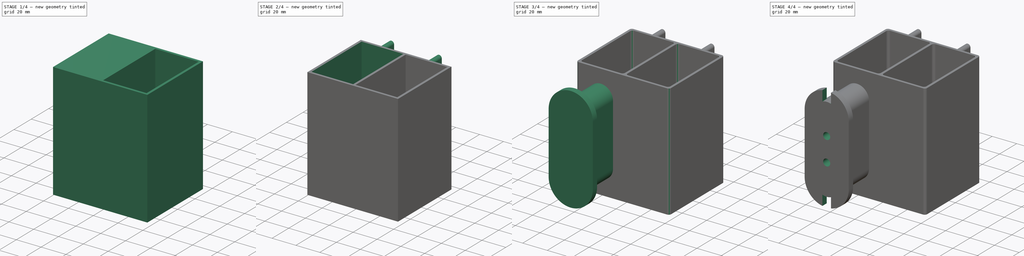
[diagram: build sequence overview — one tinted view per stage of 4, left to right]
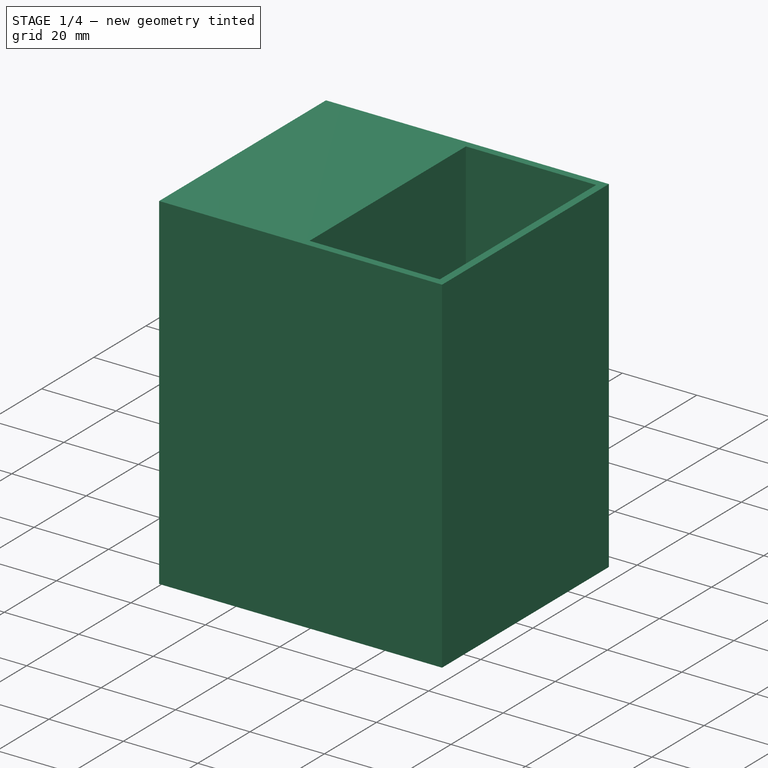
[diagram: stage 1 of 4 — iso view after this stage's code; geometry added in this stage tinted green]
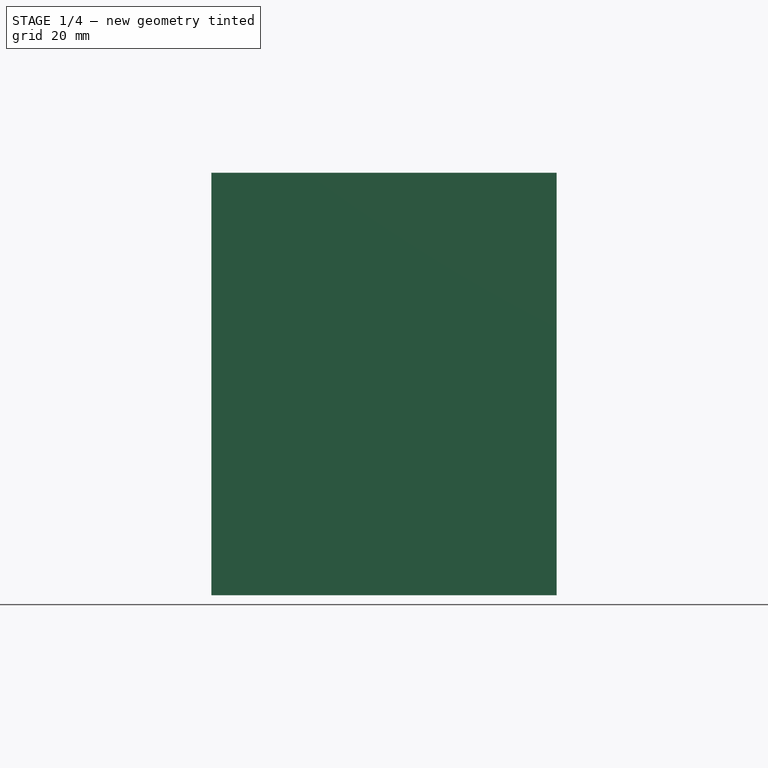
[diagram: stage 1 of 4 — front view after this stage's code; geometry added in this stage tinted green]
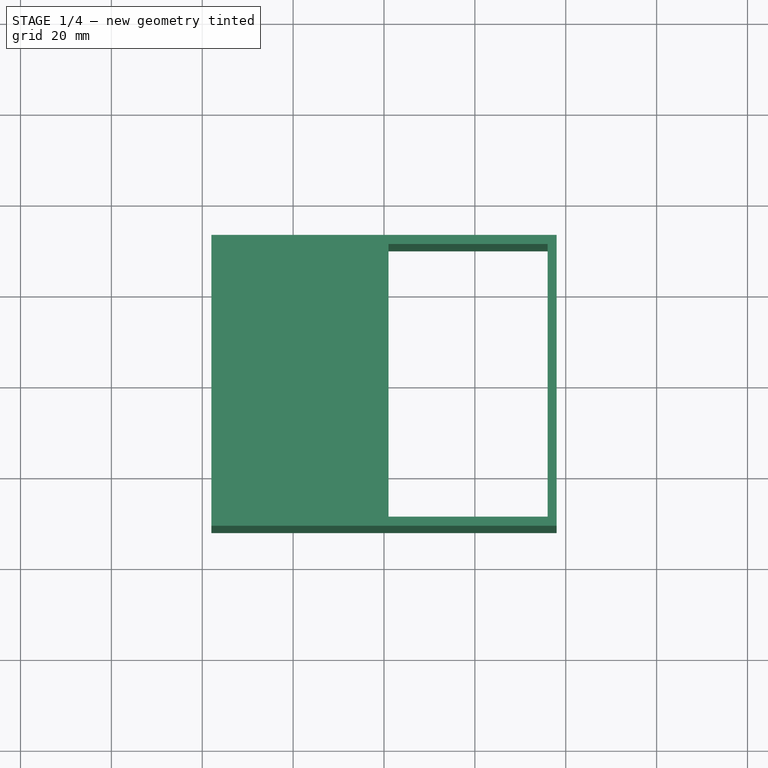
[diagram: stage 1 of 4 — top view after this stage's code; geometry added in this stage tinted green]
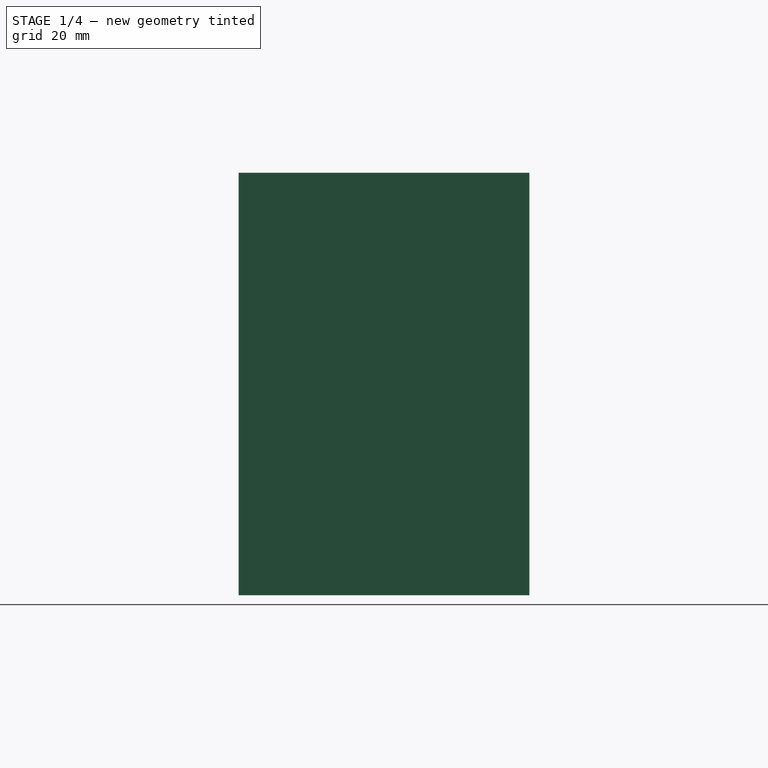
[diagram: stage 1 of 4 — right view after this stage's code; geometry added in this stage tinted green]
FCSTD DOCUMENT  (FreeCAD 1.0R39285 (Git))
Label: 01_Skadis_Glue_Gun_Holder - v2
License: All rights reserved
LicenseURL: https://en.wikipedia.org/wiki/All_rights_reserved
objects: Sketcher::SketchObject×9, PartDesign::Pad×5, PartDesign::Pocket×4, PartDesign::Fillet×1, PartDesign::Body×1
note: 49 computed .brp shape members not serialized (recipe doc carries the construction recipe); baked Part::Feature solids carry a one-line shape summary decoded from their .brp

FEATURE [Sketcher::SketchObject] Sketch
  ArcFitTolerance = 1e-06
  AttachmentSupport = -> [XY_Plane]
  FullyConstrained = true
  MakeInternals = false
  MapMode = 5
  sketch-geometry (4):
    g0: LineSegment StartX=-38 StartY=32 StartZ=0 EndX=-38 EndY=-32 EndZ=0
    g1: LineSegment StartX=-38 StartY=-32 StartZ=0 EndX=38 EndY=-32 EndZ=0
    g2: LineSegment StartX=38 StartY=-32 StartZ=0 EndX=38 EndY=32 EndZ=0
    g3: LineSegment StartX=38 StartY=32 StartZ=0 EndX=-38 EndY=32 EndZ=0
  constraints (11):
    c: Coincident(g0,g1)
    c: Coincident(g1,g2)
    c: Coincident(g2,g3)
    c: Coincident(g3,g0)
    c: Vertical(g0)
    c: Vertical(g2)
    c: Horizontal(g1)
    c: Horizontal(g3)
    c: Distance(g0,g2) = 76
    c: Distance(g1,g3) = 64
    c: Symmetric(g0,g2,g-1)
FEATURE [PartDesign::Pad] Pad
  Direction = (0,0,1)
  Length = 93
  Length2 = 10
  Profile = -> Sketch
  ReferenceAxis = -> Sketch [N_Axis]
  Refine = true
  Suppressed = false
  Type = 0
FEATURE [Sketcher::SketchObject] Sketch001
  ArcFitTolerance = 1e-06
  AttachmentSupport = -> [Pad]
  ExternalGeometry = -> [Pad]
  FullyConstrained = true
  MakeInternals = false
  MapMode = 5
  Placement = pos=(0,0,93) rot=(0,0,1;0rad)
  sketch-geometry (4):
    g0: LineSegment StartX=36 StartY=30 StartZ=0 EndX=1 EndY=30 EndZ=0
    g1: LineSegment StartX=1 StartY=30 StartZ=0 EndX=1 EndY=-30 EndZ=0
    g2: LineSegment StartX=1 StartY=-30 StartZ=0 EndX=36 EndY=-30 EndZ=0
    g3: LineSegment StartX=36 StartY=-30 StartZ=0 EndX=36 EndY=30 EndZ=0
  constraints (12):
    c: Coincident(g0,g1)
    c: Coincident(g1,g2)
    c: Coincident(g2,g3)
    c: Coincident(g3,g0)
    c: Horizontal(g0)
    c: Horizontal(g2)
    c: Vertical(g1)
    c: Vertical(g3)
    c: Distance(g0) = 35
    c: DistanceY(g0,g-5) = 2
    c: DistanceX(g0,g-5) = 2
    c: DistanceY(g-6,g2) = 2
FEATURE [PartDesign::Pocket] Pocket
  BaseFeature = -> Pad
  Direction = (0,0,-1)
  Length = 5
  Length2 = 5
  Profile = -> Sketch001
  ReferenceAxis = -> Sketch001 [N_Axis]
  Refine = true
  Suppressed = false
  Type = 1
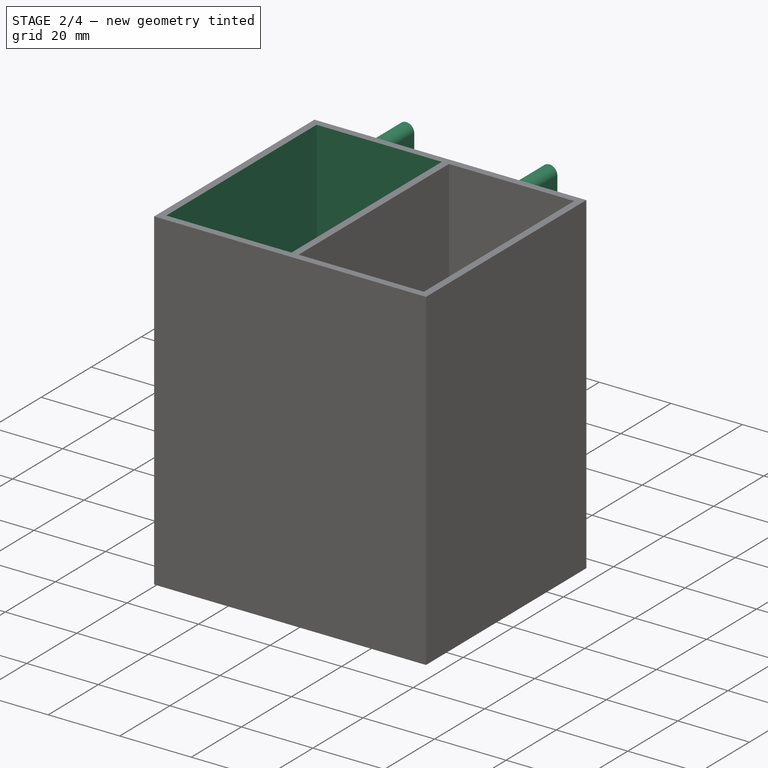
[diagram: stage 2 of 4 — iso view after this stage's code; geometry added in this stage tinted green]
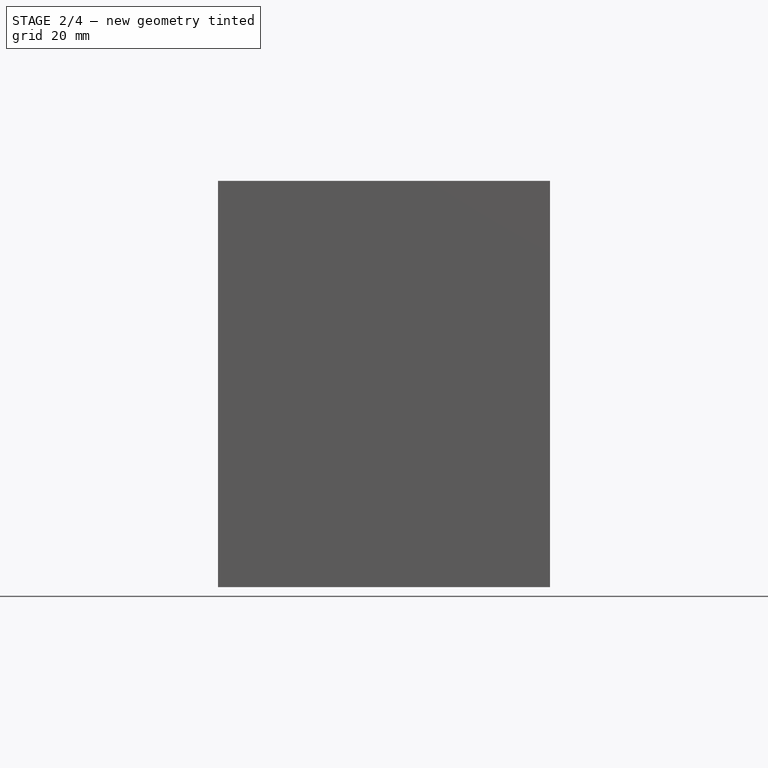
[diagram: stage 2 of 4 — front view after this stage's code; geometry added in this stage tinted green]
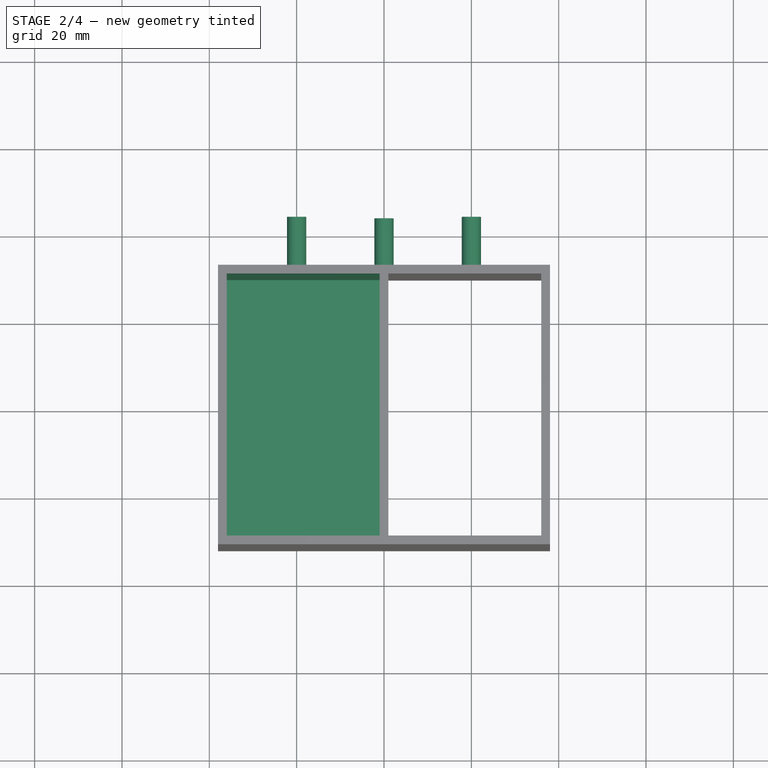
[diagram: stage 2 of 4 — top view after this stage's code; geometry added in this stage tinted green]
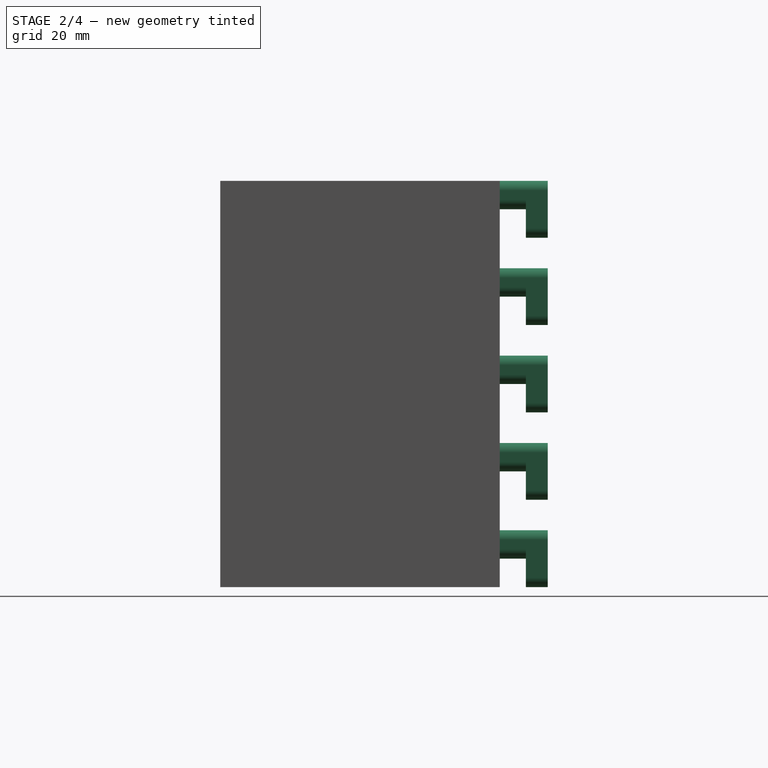
[diagram: stage 2 of 4 — right view after this stage's code; geometry added in this stage tinted green]
FEATURE [Sketcher::SketchObject] Sketch002
  ArcFitTolerance = 1e-06
  AttachmentSupport = -> [Pocket]
  ExternalGeometry = -> [Pocket]
  FullyConstrained = true
  MakeInternals = false
  MapMode = 5
  Placement = pos=(0,0,93) rot=(0,0,1;0rad)
  sketch-geometry (4):
    g0: LineSegment StartX=-36 StartY=30 StartZ=0 EndX=-36 EndY=-30 EndZ=0
    g1: LineSegment StartX=-36 StartY=-30 StartZ=0 EndX=-1 EndY=-30 EndZ=0
    g2: LineSegment StartX=-1 StartY=-30 StartZ=0 EndX=-1 EndY=30 EndZ=0
    g3: LineSegment StartX=-1 StartY=30 StartZ=0 EndX=-36 EndY=30 EndZ=0
  constraints (12):
    c: Coincident(g0,g1)
    c: Coincident(g1,g2)
    c: Coincident(g2,g3)
    c: Coincident(g3,g0)
    c: Vertical(g0)
    c: Vertical(g2)
    c: Horizontal(g1)
    c: Horizontal(g3)
    c: Distance(g3) = 35
    c: DistanceY(g0,g-4) = 2
    c: DistanceX(g-4,g0) = 2
    c: DistanceY(g-5,g0) = 2
FEATURE [PartDesign::Pocket] Pocket001
  BaseFeature = -> Pocket
  Direction = (0,0,-1)
  Length = 88
  Length2 = 5
  Profile = -> Sketch002
  ReferenceAxis = -> Sketch002 [N_Axis]
  Refine = true
  Suppressed = false
  Type = 0
FEATURE [Sketcher::SketchObject] Sketch003
  ArcFitTolerance = 1e-06
  AttachmentSupport = -> [Pocket001]
  ExternalGeometry = -> [Pocket001]
  FullyConstrained = true
  MakeInternals = false
  MapMode = 5
  Placement = pos=(0,32,0) rot=(0,0.707107,0.707107;3.14159rad)
  sketch-geometry (32):
    g0: ArcOfCircle CenterX=-20 CenterY=10.8 CenterZ=0 NormalX=0 NormalY=0 NormalZ=1 AngleXU=0 Radius=2.2 StartAngle=2e-16 EndAngle=3.14159
    g1: ArcOfCircle CenterX=-20 CenterY=8.7 CenterZ=0 NormalX=0 NormalY=0 NormalZ=1 AngleXU=0 Radius=2.2 StartAngle=3.14159 EndAngle=6.28319
    g2: LineSegment StartX=-17.8 StartY=10.8 StartZ=0 EndX=-17.8 EndY=8.7 EndZ=0
    g3: LineSegment StartX=-22.2 StartY=10.8 StartZ=0 EndX=-22.2 EndY=8.7 EndZ=0
    g4: ArcOfCircle CenterX=20 CenterY=10.8 CenterZ=0 NormalX=0 NormalY=0 NormalZ=1 AngleXU=0 Radius=2.2 StartAngle=0 EndAngle=3.14159
    g5: ArcOfCircle CenterX=20 CenterY=8.7 CenterZ=0 NormalX=0 NormalY=0 NormalZ=1 AngleXU=0 Radius=2.2 StartAngle=3.14159 EndAngle=6.28319
    g6: LineSegment StartX=22.2 StartY=10.8 StartZ=0 EndX=22.2 EndY=8.7 EndZ=0
    g7: LineSegment StartX=17.8 StartY=10.8 StartZ=0 EndX=17.8 EndY=8.7 EndZ=0
    g8: ArcOfCircle CenterX=20 CenterY=50.8 CenterZ=0 NormalX=0 NormalY=0 NormalZ=1 AngleXU=0 Radius=2.2 StartAngle=8e-16 EndAngle=3.14159
    g9: ArcOfCircle CenterX=20 CenterY=48.7 CenterZ=0 NormalX=0 NormalY=0 NormalZ=1 AngleXU=0 Radius=2.2 StartAngle=3.14159 EndAngle=6.28319
    g10: LineSegment StartX=22.2 StartY=50.8 StartZ=0 EndX=22.2 EndY=48.7 EndZ=0
    g11: LineSegment StartX=17.8 StartY=50.8 StartZ=0 EndX=17.8 EndY=48.7 EndZ=0
    g12: ArcOfCircle CenterX=-20 CenterY=50.8 CenterZ=0 NormalX=0 NormalY=0 NormalZ=1 AngleXU=0 Radius=2.2 StartAngle=-9e-16 EndAngle=3.14159
    g13: ArcOfCircle CenterX=-20 CenterY=48.7 CenterZ=0 NormalX=0 NormalY=0 NormalZ=1 AngleXU=0 Radius=2.2 StartAngle=3.14159 EndAngle=6.28319
    g14: LineSegment StartX=-17.8 StartY=50.8 StartZ=0 EndX=-17.8 EndY=48.7 EndZ=0
    g15: LineSegment StartX=-22.2 StartY=50.8 StartZ=0 EndX=-22.2 EndY=48.7 EndZ=0
    g16: ArcOfCircle CenterX=0 CenterY=30.8 CenterZ=0 NormalX=0 NormalY=0 NormalZ=1 AngleXU=0 Radius=2.2 StartAngle=-9e-16 EndAngle=3.14159
    g17: ArcOfCircle CenterX=1e-16 CenterY=28.7 CenterZ=0 NormalX=0 NormalY=0 NormalZ=1 AngleXU=0 Radius=2.2 StartAngle=3.14159 EndAngle=6.28319
    g18: LineSegment StartX=2.2 StartY=30.8 StartZ=0 EndX=2.2 EndY=28.7 EndZ=0
    g19: LineSegment StartX=-2.2 StartY=30.8 StartZ=0 EndX=-2.2 EndY=28.7 EndZ=0
    g20: ArcOfCircle CenterX=0 CenterY=70.8 CenterZ=0 NormalX=0 NormalY=0 NormalZ=1 AngleXU=0 Radius=2.2 StartAngle=0 EndAngle=3.14159
    g21: ArcOfCircle CenterX=2e-16 CenterY=68.7 CenterZ=0 NormalX=0 NormalY=0 NormalZ=1 AngleXU=0 Radius=2.2 StartAngle=3.14159 EndAngle=6.28319
    g22: LineSegment StartX=2.2 StartY=70.8 StartZ=0 EndX=2.2 EndY=68.7 EndZ=0
    g23: LineSegment StartX=-2.2 StartY=70.8 StartZ=0 EndX=-2.2 EndY=68.7 EndZ=0
    g24: ArcOfCircle CenterX=20 CenterY=90.8 CenterZ=0 NormalX=0 NormalY=0 NormalZ=1 AngleXU=0 Radius=2.2 StartAngle=1.2e-15 EndAngle=3.14159
    g25: ArcOfCircle CenterX=20 CenterY=88.7 CenterZ=0 NormalX=0 NormalY=0 NormalZ=1 AngleXU=0 Radius=2.2 StartAngle=3.14159 EndAngle=6.28319
    g26: LineSegment StartX=22.2 StartY=90.8 StartZ=0 EndX=22.2 EndY=88.7 EndZ=0
    g27: LineSegment StartX=17.8 StartY=90.8 StartZ=0 EndX=17.8 EndY=88.7 EndZ=0
    g28: ArcOfCircle CenterX=-20 CenterY=90.8 CenterZ=0 NormalX=0 NormalY=0 NormalZ=1 AngleXU=0 Radius=2.2 StartAngle=3.46115e-11 EndAngle=3.14159
    g29: ArcOfCircle CenterX=-20 CenterY=88.7 CenterZ=0 NormalX=0 NormalY=0 NormalZ=1 AngleXU=0 Radius=2.2 StartAngle=3.14159 EndAngle=6.28319
    g30: LineSegment StartX=-17.8 StartY=90.8 StartZ=0 EndX=-17.8 EndY=88.7 EndZ=0
    g31: LineSegment StartX=-22.2 StartY=90.8 StartZ=0 EndX=-22.2 EndY=88.7 EndZ=0
  constraints (80):
    c: Tangent(g0,g2) = 1.5708
    c: Tangent(g0,g3) = -1.5708
    c: Tangent(g1,g2) = 1.5708
    c: Tangent(g1,g3) = -1.5708
    c: Equal(g0,g1)
    c: Vertical(g3)
    c: Distance(g0,g1) = 2.1
    c: Radius(g0) = 2.2
    c: Tangent(g4,g6) = 1.5708
    c: Tangent(g4,g7) = -1.5708
    c: Tangent(g5,g6) = 1.5708
    c: Tangent(g5,g7) = -1.5708
    c: Equal(g4,g5)
    c: Vertical(g7)
    c: Distance(g4,g5) = 2.1
    c: Radius(g4) = 2.2
    c: Tangent(g8,g10) = 1.5708
    c: Tangent(g8,g11) = -1.5708
    c: Tangent(g9,g10) = 1.5708
    c: Tangent(g9,g11) = -1.5708
    c: Equal(g8,g9)
    c: Vertical(g11)
    c: Distance(g8,g9) = 2.1
    c: Radius(g8) = 2.2
    c: Tangent(g12,g14) = 1.5708
    c: Tangent(g12,g15) = -1.5708
    c: Tangent(g13,g14) = 1.5708
    c: Tangent(g13,g15) = -1.5708
    c: Equal(g12,g13)
    c: Vertical(g15)
    c: Distance(g12,g13) = 2.1
    c: Radius(g12) = 2.2
    c: Horizontal(g1,g5)
    c: Horizontal(g13,g9)
    c: Vertical(g5,g9)
    c: Vertical(g1,g13)
    c: DistanceX(g1,g5) = 40
    c: DistanceY(g0,g12) = 40
    c: Tangent(g16,g18) = 1.5708
    c: Tangent(g16,g19) = -1.5708
    c: Tangent(g17,g18) = 1.5708
    c: Tangent(g17,g19) = -1.5708
    c: Equal(g16,g17)
    c: Vertical(g19)
    c: Distance(g16,g17) = 2.1
    c: Radius(g16) = 2.2
    c: DistanceX(g12,g16) = 20
    c: DistanceY(g16,g12) = 20
    c: DistanceX(g-1,g16) = 0
    c: Tangent(g20,g22) = 1.5708
    c: Tangent(g20,g23) = -1.5708
    c: Tangent(g21,g22) = 1.5708
    c: Tangent(g21,g23) = -1.5708
    c: Equal(g20,g21)
    c: Vertical(g23)
    c: Distance(g20,g21) = 2.1
    c: Radius(g20) = 2.2
    c: DistanceY(g16,g20) = 40
    c: Vertical(g16,g20)
    c: DistanceY(g-1,g0) = 10.8
    c: Tangent(g24,g26) = 1.5708
    c: Tangent(g24,g27) = -1.5708
    c: Tangent(g25,g26) = 1.5708
    c: Tangent(g25,g27) = -1.5708
    c: Equal(g24,g25)
    c: Vertical(g27)
    c: Distance(g24,g25) = 2.1
    c: Radius(g24) = 2.2
    c: Tangent(g28,g30) = 1.5708
    c: Tangent(g28,g31) = -1.5708
    c: Tangent(g29,g30) = 1.5708
    c: Tangent(g29,g31) = -1.5708
    c: Equal(g28,g29)
    c: Vertical(g31)
    c: Distance(g28,g29) = 2.1
    c: Radius(g28) = 2.2
    c: Vertical(g28,g12)
    c: Vertical(g24,g8)
    c: Horizontal(g29,g25)
    c: DistanceY(g12,g28) = 40
FEATURE [PartDesign::Pad] Pad001
  BaseFeature = -> Pocket001
  Direction = (0,1,-2e-16)
  Length = 6
  Length2 = 10
  Profile = -> Sketch003
  ReferenceAxis = -> Sketch003 [N_Axis]
  Refine = true
  Suppressed = false
  Type = 0
FEATURE [Sketcher::SketchObject] Sketch004
  ArcFitTolerance = 1e-06
  AttachmentSupport = -> [Pad001]
  ExternalGeometry = -> [Pad001]
  FullyConstrained = true
  MakeInternals = false
  MapMode = 5
  Placement = pos=(0,38,-9.8e-15) rot=(0,0.707107,0.707107;3.14159rad)
  sketch-geometry (32):
    g0: ArcOfCircle CenterX=-20 CenterY=10.8 CenterZ=0 NormalX=0 NormalY=0 NormalZ=1 AngleXU=0 Radius=2.2 StartAngle=2e-16 EndAngle=3.14159
    g1: ArcOfCircle CenterX=-20 CenterY=2.2 CenterZ=0 NormalX=0 NormalY=0 NormalZ=1 AngleXU=0 Radius=2.2 StartAngle=3.14159 EndAngle=6.28319
    g2: LineSegment StartX=-17.8 StartY=10.8 StartZ=0 EndX=-17.8 EndY=2.2 EndZ=0
    g3: LineSegment StartX=-22.2 StartY=10.8 StartZ=0 EndX=-22.2 EndY=2.2 EndZ=0
    g4: ArcOfCircle CenterX=20 CenterY=10.8 CenterZ=0 NormalX=0 NormalY=0 NormalZ=1 AngleXU=0 Radius=2.2 StartAngle=-1.11822e-11 EndAngle=3.14159
    g5: ArcOfCircle CenterX=20 CenterY=2.2 CenterZ=0 NormalX=0 NormalY=0 NormalZ=1 AngleXU=0 Radius=2.2 StartAngle=3.14159 EndAngle=6.28319
    g6: LineSegment StartX=22.2 StartY=10.8 StartZ=0 EndX=22.2 EndY=2.2 EndZ=0
    g7: LineSegment StartX=17.8 StartY=10.8 StartZ=0 EndX=17.8 EndY=2.2 EndZ=0
    g8: ArcOfCircle CenterX=1.37e-14 CenterY=30.8 CenterZ=0 NormalX=0 NormalY=0 NormalZ=1 AngleXU=0 Radius=2.2 StartAngle=6.43e-14 EndAngle=3.14159
    g9: ArcOfCircle CenterX=7.06e-14 CenterY=22.2 CenterZ=0 NormalX=0 NormalY=0 NormalZ=1 AngleXU=0 Radius=2.2 StartAngle=3.14159 EndAngle=6.28319
    g10: LineSegment StartX=2.2 StartY=30.8 StartZ=0 EndX=2.2 EndY=22.2 EndZ=0
    g11: LineSegment StartX=-2.2 StartY=30.8 StartZ=0 EndX=-2.2 EndY=22.2 EndZ=0
    g12: ArcOfCircle CenterX=-20 CenterY=90.8 CenterZ=0 NormalX=0 NormalY=0 NormalZ=1 AngleXU=0 Radius=2.2 StartAngle=-1.492e-13 EndAngle=3.14159
    g13: ArcOfCircle CenterX=-20 CenterY=82.2 CenterZ=0 NormalX=0 NormalY=0 NormalZ=1 AngleXU=0 Radius=2.2 StartAngle=3.14159 EndAngle=6.28319
    g14: LineSegment StartX=-17.8 StartY=90.8 StartZ=0 EndX=-17.8 EndY=82.2 EndZ=0
    g15: LineSegment StartX=-22.2 StartY=90.8 StartZ=0 EndX=-22.2 EndY=82.2 EndZ=0
    g16: ArcOfCircle CenterX=20 CenterY=50.8 CenterZ=0 NormalX=0 NormalY=0 NormalZ=1 AngleXU=0 Radius=2.2 StartAngle=-3.46e-14 EndAngle=3.14159
    g17: ArcOfCircle CenterX=20 CenterY=42.2 CenterZ=0 NormalX=0 NormalY=0 NormalZ=1 AngleXU=0 Radius=2.2 StartAngle=3.14159 EndAngle=6.28319
    g18: LineSegment StartX=22.2 StartY=50.8 StartZ=0 EndX=22.2 EndY=42.2 EndZ=0
    g19: LineSegment StartX=17.8 StartY=50.8 StartZ=0 EndX=17.8 EndY=42.2 EndZ=0
    g20: ArcOfCircle CenterX=-20 CenterY=50.8 CenterZ=0 NormalX=0 NormalY=0 NormalZ=1 AngleXU=0 Radius=2.2 StartAngle=-9e-16 EndAngle=3.14159
    g21: ArcOfCircle CenterX=-20 CenterY=42.2 CenterZ=0 NormalX=0 NormalY=0 NormalZ=1 AngleXU=0 Radius=2.2 StartAngle=3.14159 EndAngle=6.28319
    g22: LineSegment StartX=-17.8 StartY=50.8 StartZ=0 EndX=-17.8 EndY=42.2 EndZ=0
    g23: LineSegment StartX=-22.2 StartY=50.8 StartZ=0 EndX=-22.2 EndY=42.2 EndZ=0
    g24: ArcOfCircle CenterX=0 CenterY=70.8 CenterZ=0 NormalX=0 NormalY=0 NormalZ=1 AngleXU=0 Radius=2.2 StartAngle=-4.9205e-12 EndAngle=3.14159
    g25: ArcOfCircle CenterX=-4.33272e-11 CenterY=62.2 CenterZ=0 NormalX=0 NormalY=0 NormalZ=1 AngleXU=0 Radius=2.2 StartAngle=3.14159 EndAngle=6.28319
    g26: LineSegment StartX=2.2 StartY=70.8 StartZ=0 EndX=2.2 EndY=62.2 EndZ=0
    g27: LineSegment StartX=-2.2 StartY=70.8 StartZ=0 EndX=-2.2 EndY=62.2 EndZ=0
    g28: ArcOfCircle CenterX=20 CenterY=90.8 CenterZ=0 NormalX=0 NormalY=0 NormalZ=1 AngleXU=0 Radius=2.2 StartAngle=4e-16 EndAngle=3.14159
    g29: ArcOfCircle CenterX=20 CenterY=82.2 CenterZ=0 NormalX=0 NormalY=0 NormalZ=1 AngleXU=0 Radius=2.2 StartAngle=3.14159 EndAngle=6.28319
    g30: LineSegment StartX=22.2 StartY=90.8 StartZ=0 EndX=22.2 EndY=82.2 EndZ=0
    g31: LineSegment StartX=17.8 StartY=90.8 StartZ=0 EndX=17.8 EndY=82.2 EndZ=0
  constraints (72):
    c: Tangent(g0,g2) = 1.5708
    c: Tangent(g0,g3) = -1.5708
    c: Tangent(g1,g2) = 1.5708
    c: Tangent(g1,g3) = -1.5708
    c: Equal(g0,g1)
    c: Vertical(g3)
    c: Distance(g0,g1) = 8.6
    c: Radius(g0) = 2.2
    c: Tangent(g4,g6) = 1.5708
    c: Tangent(g4,g7) = -1.5708
    c: Tangent(g5,g6) = 1.5708
    c: Tangent(g5,g7) = -1.5708
    c: Equal(g4,g5)
    c: Vertical(g7)
    c: Distance(g4,g5) = 8.6
    c: Radius(g4) = 2.2
    c: Tangent(g8,g10) = 1.5708
    c: Tangent(g8,g11) = -1.5708
    c: Tangent(g9,g10) = 1.5708
    c: Tangent(g9,g11) = -1.5708
    c: Equal(g8,g9)
    c: Vertical(g11)
    c: Distance(g8,g9) = 8.6
    c: Radius(g8) = 2.2
    c: Tangent(g12,g14) = 1.5708
    c: Tangent(g12,g15) = -1.5708
    c: Tangent(g13,g14) = 1.5708
    c: Tangent(g13,g15) = -1.5708
    c: Equal(g12,g13)
    c: Vertical(g15)
    c: Distance(g12,g13) = 8.6
    c: Radius(g12) = 2.2
    c: Tangent(g16,g18) = 1.5708
    c: Tangent(g16,g19) = -1.5708
    c: Tangent(g17,g18) = 1.5708
    c: Tangent(g17,g19) = -1.5708
    c: Equal(g16,g17)
    c: Vertical(g19)
    c: Distance(g16,g17) = 8.6
    c: Radius(g16) = 2.2
    c: Coincident(g-16,g4)
    c: Coincident(g0,g-19)
    c: Coincident(g8,g-11)
    c: Coincident(g16,g-5)
    c: Tangent(g20,g22) = 1.5708
    c: Tangent(g20,g23) = -1.5708
    c: Tangent(g21,g22) = 1.5708
    c: Tangent(g21,g23) = -1.5708
    c: Equal(g20,g21)
    c: Vertical(g23)
    c: Distance(g20,g21) = 8.6
    c: Radius(g20) = 2.2
    c: Tangent(g24,g26) = 1.5708
    c: Tangent(g24,g27) = -1.5708
    c: Tangent(g25,g26) = 1.5708
    c: Tangent(g25,g27) = -1.5708
    c: Equal(g24,g25)
    c: Vertical(g27)
    c: Distance(g24,g25) = 8.6
    c: Radius(g24) = 2.2
    c: Tangent(g28,g30) = 1.5708
    c: Tangent(g28,g31) = -1.5708
    c: Tangent(g29,g30) = 1.5708
    c: Tangent(g29,g31) = -1.5708
    c: Equal(g28,g29)
    c: Vertical(g31)
    c: Distance(g28,g29) = 8.6
    c: Radius(g28) = 2.2
    c: Coincident(g20,g-23)
    c: Coincident(g12,g-37)
    c: Coincident(g28,g-33)
    c: Coincident(g24,g-29)
FEATURE [PartDesign::Pad] Pad002
  BaseFeature = -> Pad001
  Direction = (0,1,-2e-16)
  Length = 5
  Length2 = 10
  Profile = -> Sketch004
  ReferenceAxis = -> Sketch004 [N_Axis]
  Refine = true
  Suppressed = false
  Type = 0
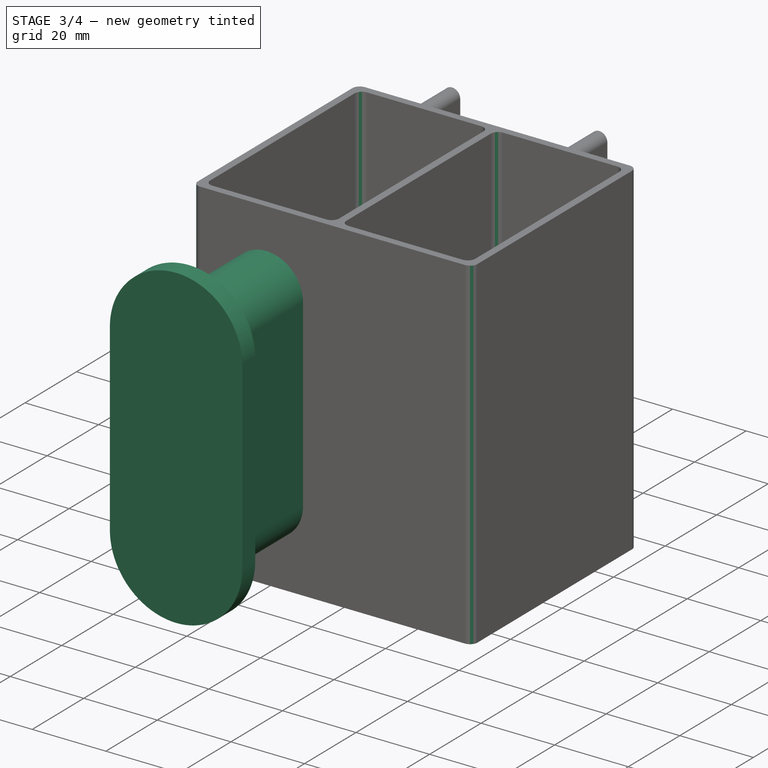
[diagram: stage 3 of 4 — iso view after this stage's code; geometry added in this stage tinted green]
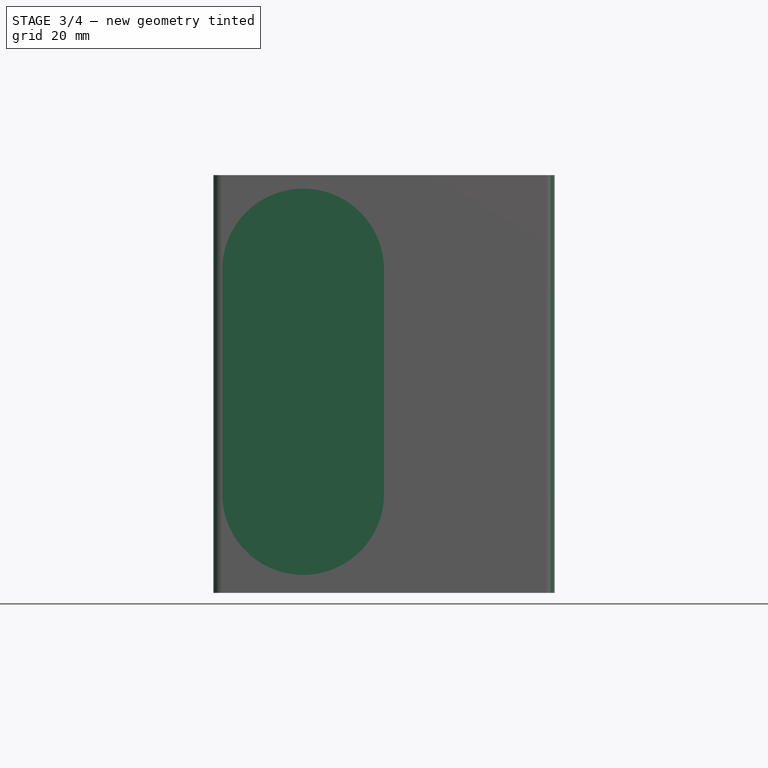
[diagram: stage 3 of 4 — front view after this stage's code; geometry added in this stage tinted green]
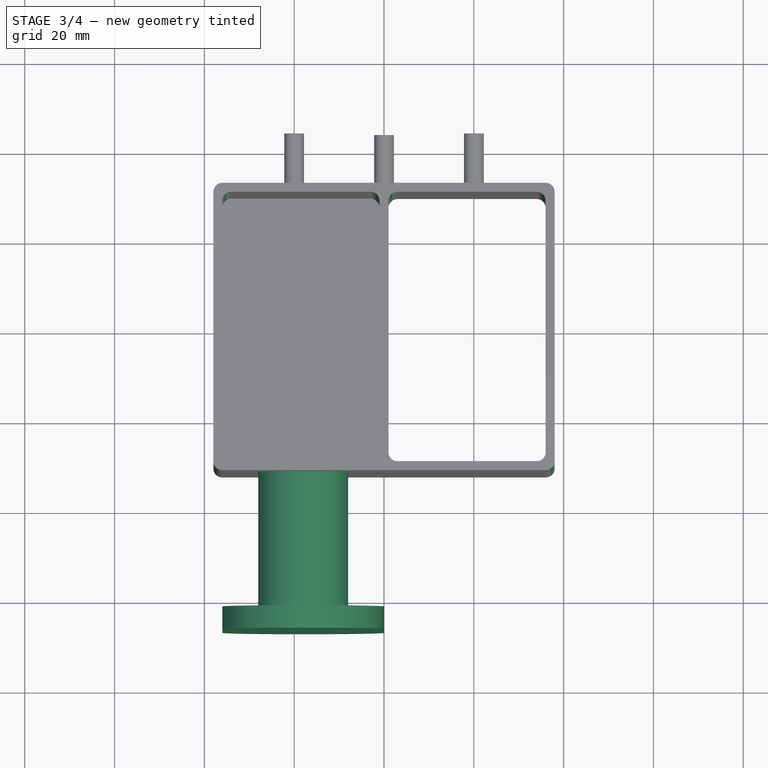
[diagram: stage 3 of 4 — top view after this stage's code; geometry added in this stage tinted green]
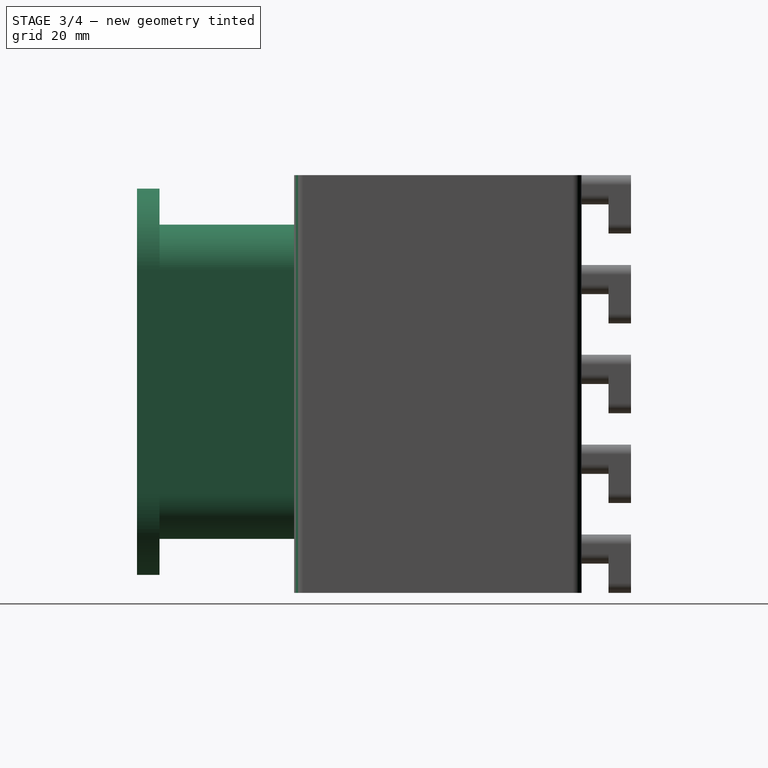
[diagram: stage 3 of 4 — right view after this stage's code; geometry added in this stage tinted green]
FEATURE [PartDesign::Fillet] Fillet
  Base = -> Pad002 [Edge9,Edge44,Edge2,Edge1,Edge89,Edge85,Edge94,Edge86,Edge90,Edge87,Edge92,Edge88]
  BaseFeature = -> Pad002
  Radius = 2
  Refine = true
  SupportTransform = false
  Suppressed = false
  UseAllEdges = false
FEATURE [Sketcher::SketchObject] Sketch005
  ArcFitTolerance = 1e-06
  AttachmentSupport = -> [Fillet]
  ExternalGeometry = -> [Fillet]
  FullyConstrained = true
  MakeInternals = false
  MapMode = 5
  Placement = pos=(0,-32,0) rot=(1,0,0;1.5708rad)
  sketch-geometry (4):
    g0: ArcOfCircle CenterX=-18 CenterY=72 CenterZ=0 NormalX=0 NormalY=0 NormalZ=1 AngleXU=0 Radius=10 StartAngle=-9e-16 EndAngle=3.14159
    g1: ArcOfCircle CenterX=-18 CenterY=22 CenterZ=0 NormalX=0 NormalY=0 NormalZ=1 AngleXU=0 Radius=10 StartAngle=3.14159 EndAngle=6.28319
    g2: LineSegment StartX=-8 StartY=72 StartZ=0 EndX=-8 EndY=22 EndZ=0
    g3: LineSegment StartX=-28 StartY=72 StartZ=0 EndX=-28 EndY=22 EndZ=0
  constraints (10):
    c: Tangent(g0,g2) = 1.5708
    c: Tangent(g0,g3) = -1.5708
    c: Tangent(g1,g2) = 1.5708
    c: Tangent(g1,g3) = -1.5708
    c: Equal(g0,g1)
    c: Vertical(g3)
    c: Distance(g0,g1) = 50
    c: Radius(g0) = 10
    c: DistanceY(g0,g-4) = 21
    c: DistanceX(g-4,g0) = 18
FEATURE [PartDesign::Pad] Pad003
  BaseFeature = -> Fillet
  Direction = (0,-1,2e-16)
  Length = 30
  Length2 = 10
  Profile = -> Sketch005
  ReferenceAxis = -> Sketch005 [N_Axis]
  Refine = true
  Suppressed = false
  Type = 0
FEATURE [Sketcher::SketchObject] Sketch006
  ArcFitTolerance = 1e-06
  AttachmentSupport = -> [Pad003]
  ExternalGeometry = -> [Pad003]
  FullyConstrained = true
  MakeInternals = false
  MapMode = 5
  Placement = pos=(0,-62,0) rot=(1,0,0;1.5708rad)
  sketch-geometry (4):
    g0: ArcOfCircle CenterX=-18 CenterY=72 CenterZ=0 NormalX=0 NormalY=0 NormalZ=1 AngleXU=0 Radius=18 StartAngle=5e-16 EndAngle=3.14159
    g1: ArcOfCircle CenterX=-18 CenterY=22 CenterZ=0 NormalX=0 NormalY=0 NormalZ=1 AngleXU=0 Radius=18 StartAngle=3.14159 EndAngle=6.28319
    g2: LineSegment StartX=-8.88e-14 StartY=72 StartZ=0 EndX=-8.88e-14 EndY=22 EndZ=0
    g3: LineSegment StartX=-36 StartY=72 StartZ=0 EndX=-36 EndY=22 EndZ=0
  constraints (9):
    c: Tangent(g0,g2) = 1.5708
    c: Tangent(g0,g3) = -1.5708
    c: Tangent(g1,g2) = 1.5708
    c: Tangent(g1,g3) = -1.5708
    c: Equal(g0,g1)
    c: Vertical(g3)
    c: Distance(g0,g1) = 50
    c: Radius(g0) = 18
    c: Coincident(g1,g-6)
FEATURE [PartDesign::Pad] Pad004
  BaseFeature = -> Pad003
  Direction = (0,-1,2e-16)
  Length = 5
  Length2 = 10
  Profile = -> Sketch006
  ReferenceAxis = -> Sketch006 [N_Axis]
  Refine = true
  Suppressed = false
  Type = 0
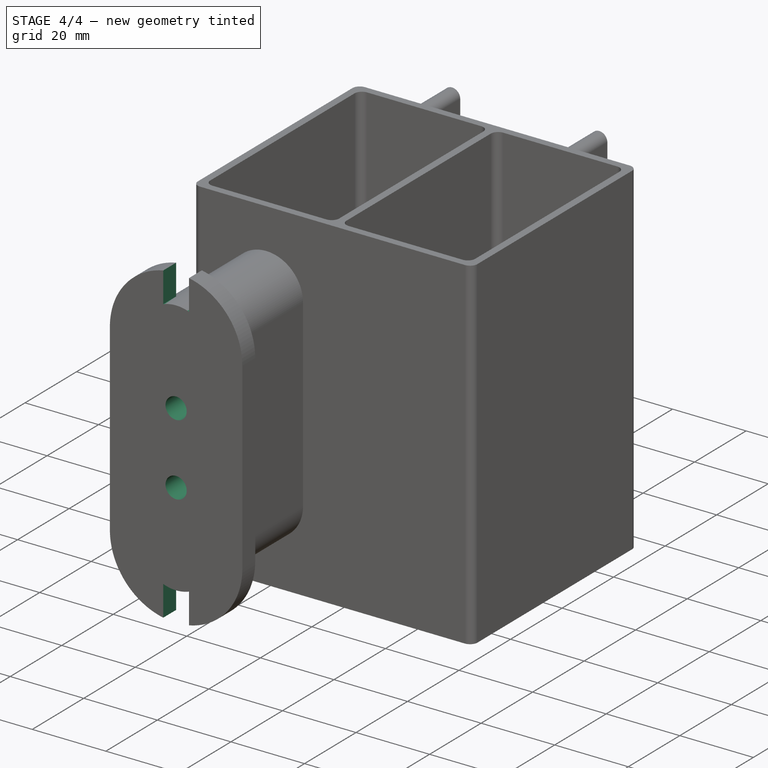
[diagram: stage 4 of 4 — iso view after this stage's code; geometry added in this stage tinted green]
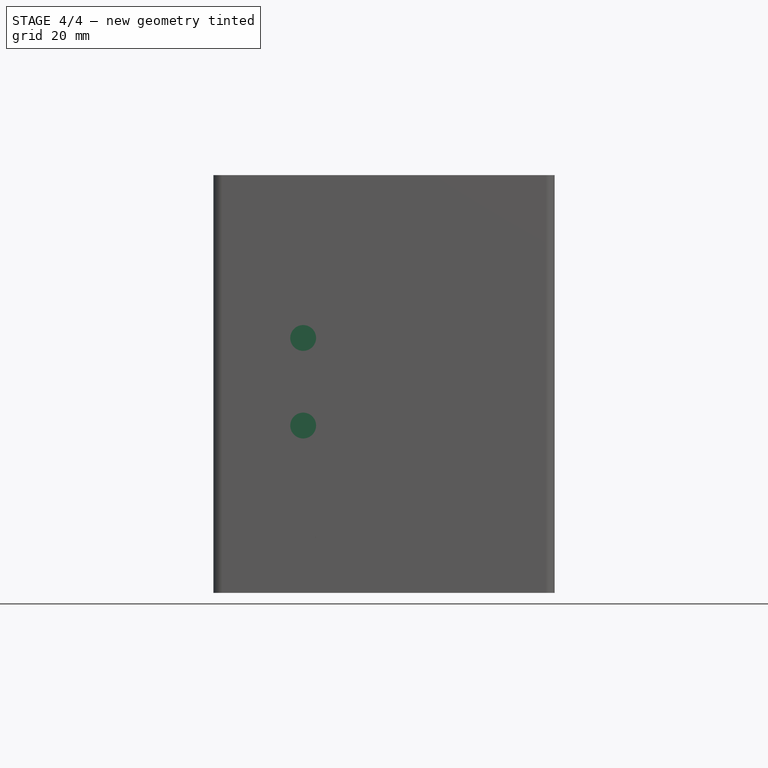
[diagram: stage 4 of 4 — front view after this stage's code; geometry added in this stage tinted green]
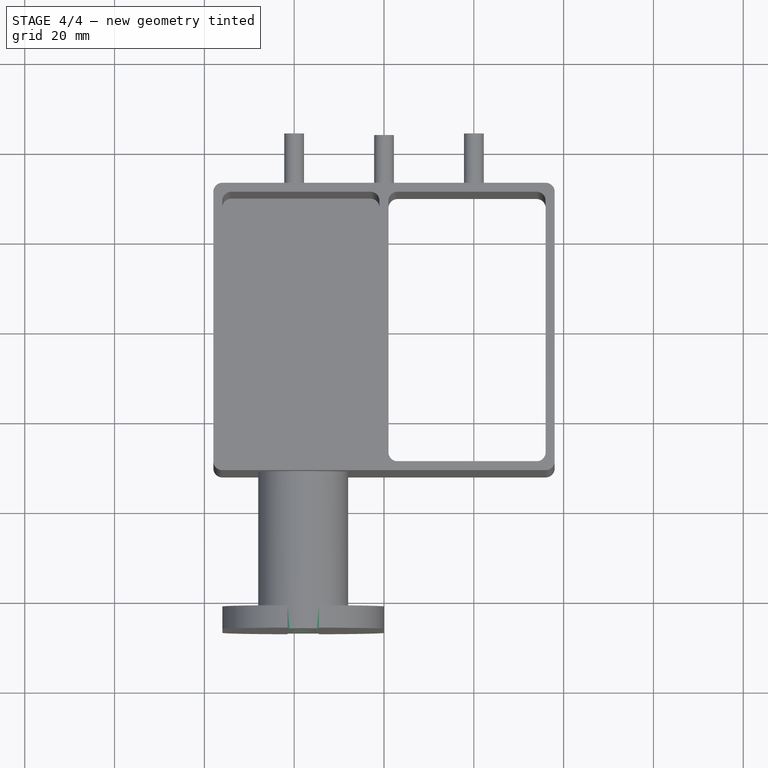
[diagram: stage 4 of 4 — top view after this stage's code; geometry added in this stage tinted green]
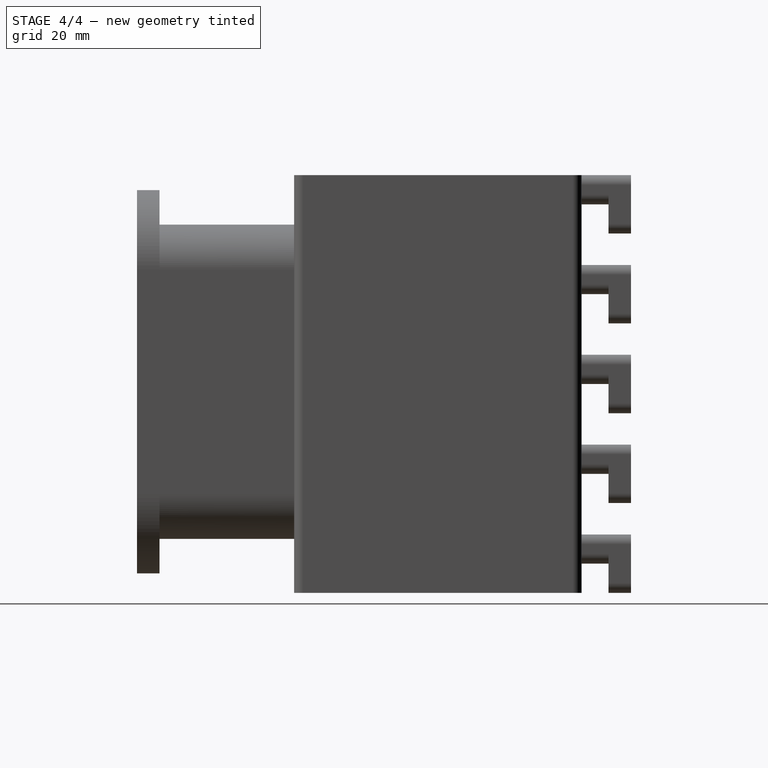
[diagram: stage 4 of 4 — right view after this stage's code; geometry added in this stage tinted green]
FEATURE [Sketcher::SketchObject] Sketch007
  ArcFitTolerance = 1e-06
  AttachmentSupport = -> [Pad004]
  ExternalGeometry = -> [Pad004]
  FullyConstrained = true
  MakeInternals = false
  MapMode = 5
  Placement = pos=(0,-67,0) rot=(1,0,0;1.5708rad)
  sketch-geometry (7):
    g0: Circle CenterX=-18 CenterY=37.25 CenterZ=0 NormalX=0 NormalY=0 NormalZ=1 AngleXU=0 Radius=2.875
    g1: Circle CenterX=-18 CenterY=56.75 CenterZ=0 NormalX=0 NormalY=0 NormalZ=1 AngleXU=0 Radius=2.875
    g2: GeomPoint [constr] X=-18 Y=47 Z=0
    g3: LineSegment [constr] StartX=-18 StartY=47 StartZ=0 EndX=-18 EndY=56.75 EndZ=0
    g4: LineSegment [constr] StartX=-18 StartY=47 StartZ=0 EndX=-18 EndY=37.25 EndZ=0
    g5: LineSegment [constr] StartX=-18 StartY=47 StartZ=0 EndX=-18 EndY=72 EndZ=0
    g6: LineSegment [constr] StartX=-18 StartY=47 StartZ=0 EndX=-18 EndY=22 EndZ=0
  constraints (16):
    c: Diameter(g0) = 5.75
    c: Diameter(g1) = 5.75
    c: Vertical(g0,g1)
    c: DistanceY(g0,g1) = 19.5
    c: Vertical(g-3,g1)
    c: Vertical(g2,g0)
    c: Coincident(g3,g2)
    c: Coincident(g3,g1)
    c: Coincident(g4,g2)
    c: Coincident(g4,g0)
    c: Equal(g3,g4)
    c: Coincident(g5,g2)
    c: Coincident(g5,g-3)
    c: Coincident(g6,g2)
    c: Coincident(g6,g-6)
    c: Equal(g6,g5)
FEATURE [PartDesign::Pocket] Pocket002
  BaseFeature = -> Pad004
  Direction = (0,1,-2e-16)
  Length = 18
  Length2 = 5
  Profile = -> Sketch007
  ReferenceAxis = -> Sketch007 [N_Axis]
  Refine = true
  Suppressed = false
  Type = 0
FEATURE [Sketcher::SketchObject] Sketch008
  ArcFitTolerance = 1e-06
  AttachmentSupport = -> [Pocket002]
  ExternalGeometry = -> [Pocket002]
  FullyConstrained = true
  MakeInternals = false
  MapMode = 5
  Placement = pos=(0,-67,0) rot=(1,0,0;1.5708rad)
  sketch-geometry (8):
    g0: LineSegment StartX=-21.5 StartY=89.6564 StartZ=0 EndX=-21.5 EndY=81.3675 EndZ=0
    g1: LineSegment StartX=-14.5 StartY=89.6564 StartZ=0 EndX=-14.5 EndY=81.3675 EndZ=0
    g2: ArcOfCircle CenterX=-18 CenterY=72 CenterZ=0 NormalX=0 NormalY=0 NormalZ=1 AngleXU=0 Radius=10 StartAngle=1.21323 EndAngle=1.92837
    g3: ArcOfCircle CenterX=-18 CenterY=72 CenterZ=0 NormalX=0 NormalY=0 NormalZ=1 AngleXU=0 Radius=18 StartAngle=1.37511 EndAngle=1.76649
    g4: LineSegment StartX=-21.5 StartY=12.6325 StartZ=0 EndX=-21.5 EndY=4.34356 EndZ=0
    g5: LineSegment StartX=-14.5 StartY=12.6325 StartZ=0 EndX=-14.5 EndY=4.34356 EndZ=0
    g6: ArcOfCircle CenterX=-18 CenterY=22 CenterZ=0 NormalX=0 NormalY=0 NormalZ=1 AngleXU=0 Radius=10 StartAngle=4.35482 EndAngle=5.06996
    g7: ArcOfCircle CenterX=-18 CenterY=22 CenterZ=0 NormalX=0 NormalY=0 NormalZ=1 AngleXU=0 Radius=18 StartAngle=4.5167 EndAngle=4.90808
  constraints (24):
    c: PointOnObject(g0,g-3)
    c: PointOnObject(g0,g-8)
    c: Vertical(g0)
    c: Vertical(g1)
    c: DistanceX(g0,g1) = 7
    c: Coincident(g2,g0)
    c: Coincident(g2,g1)
    c: Coincident(g2,g-8)
    c: Coincident(g3,g0)
    c: Coincident(g3,g1)
    c: Coincident(g2,g3)
    c: Horizontal(g0,g1)
    c: PointOnObject(g4,g-7)
    c: PointOnObject(g4,g-5)
    c: Vertical(g5)
    c: Vertical(g4)
    c: DistanceX(g4,g5) = 7
    c: Coincident(g6,g4)
    c: Coincident(g6,g5)
    c: Coincident(g6,g-7)
    c: Coincident(g7,g4)
    c: Coincident(g7,g5)
    c: Coincident(g7,g6)
    c: Horizontal(g4,g5)
FEATURE [PartDesign::Pocket] Pocket003
  BaseFeature = -> Pocket002
  Direction = (0,1,-2e-16)
  Length = 0
  Length2 = 5
  Profile = -> Sketch008
  ReferenceAxis = -> Sketch008 [N_Axis]
  Refine = true
  Suppressed = false
  Type = 3
  UpToFace = -> Pocket002 [Face88]
FEATURE [PartDesign::Body] Body
  AllowCompound = false
  Group = -> [Sketch,Pad,Sketch001,Pocket,Sketch002,Pocket001,Sketch003,Pad001,Sketch004,Pad002,Fillet,Sketch005,Pad003,Sketch006,Pad004,Sketch007,Pocket002,Sketch008,Pocket003]
  Origin = -> Origin
  Tip = -> Pocket003
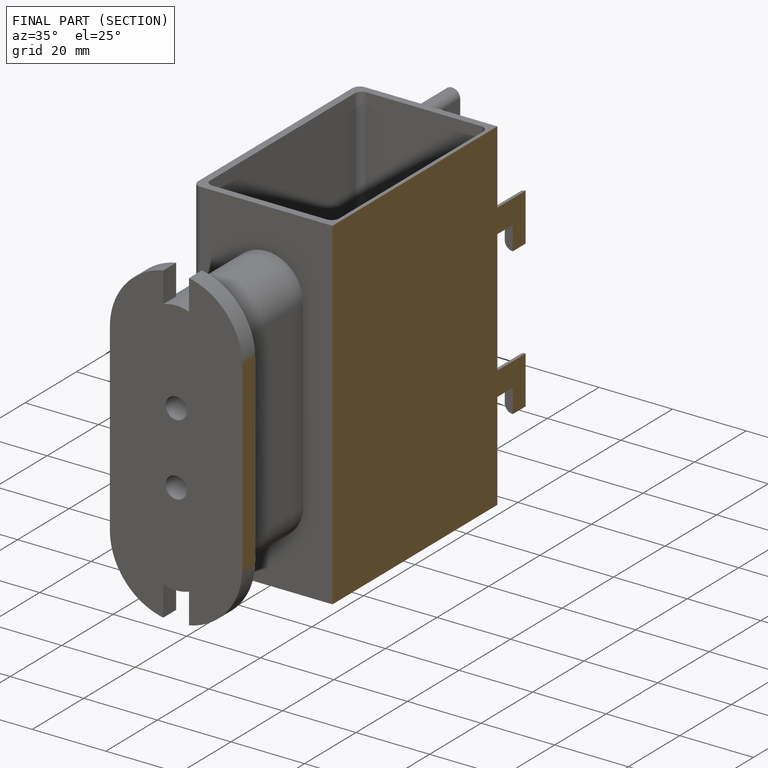
[diagram: finished part — half-section view (interior)]
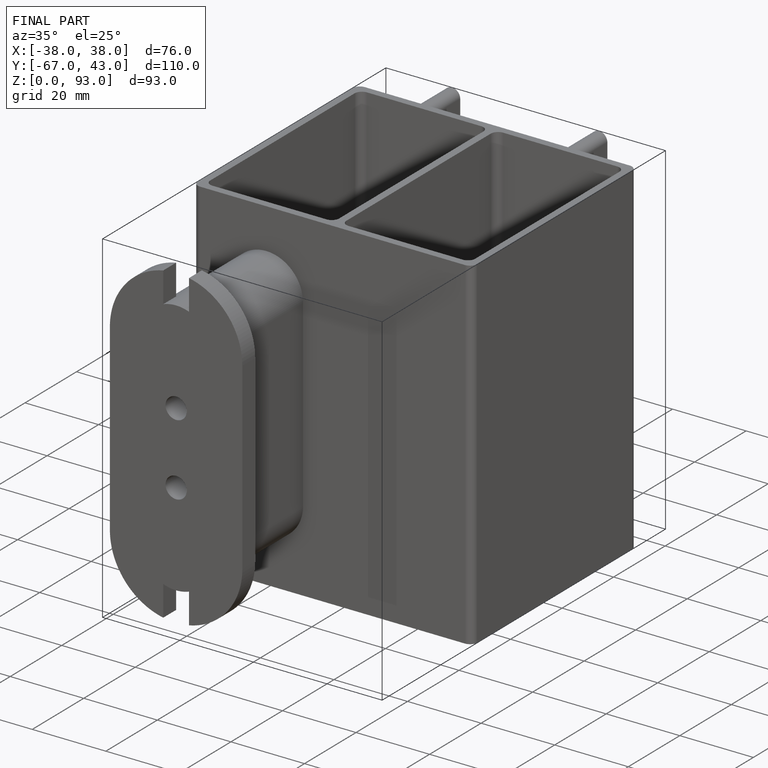
[diagram: finished part — iso view with bounding-box wireframe]
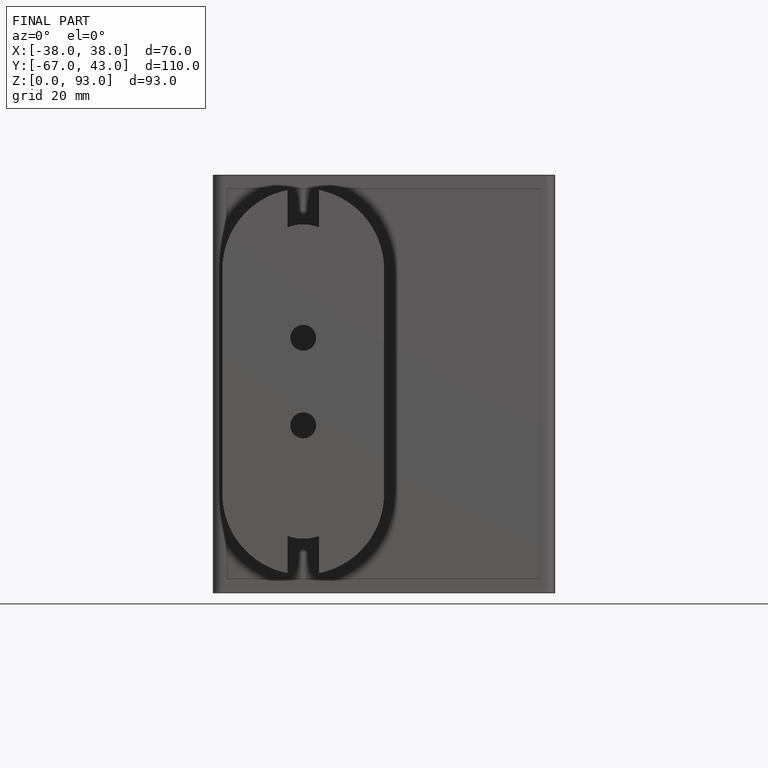
[diagram: finished part — front view with bounding-box wireframe]
